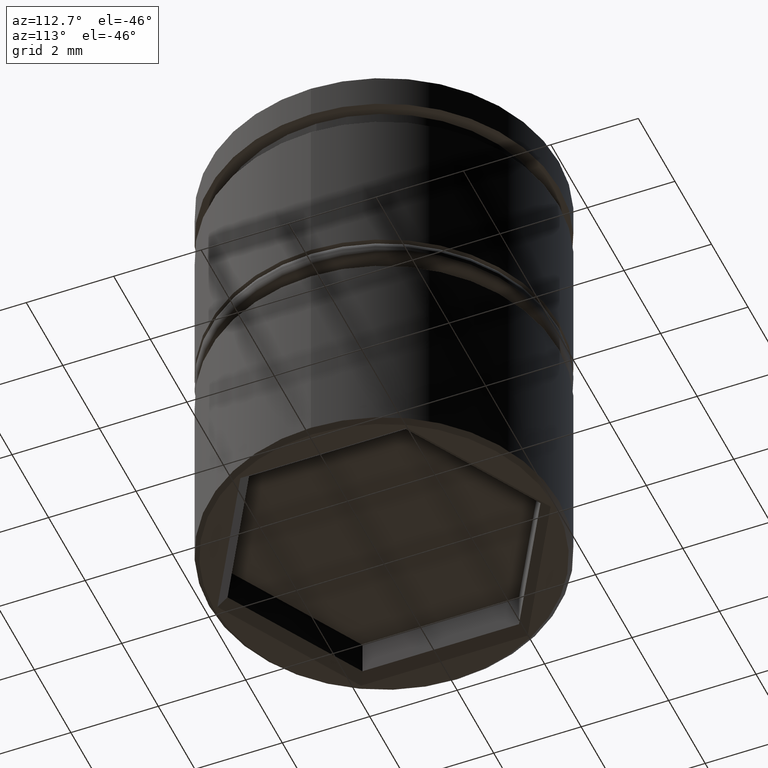
[diagram: clean part render]
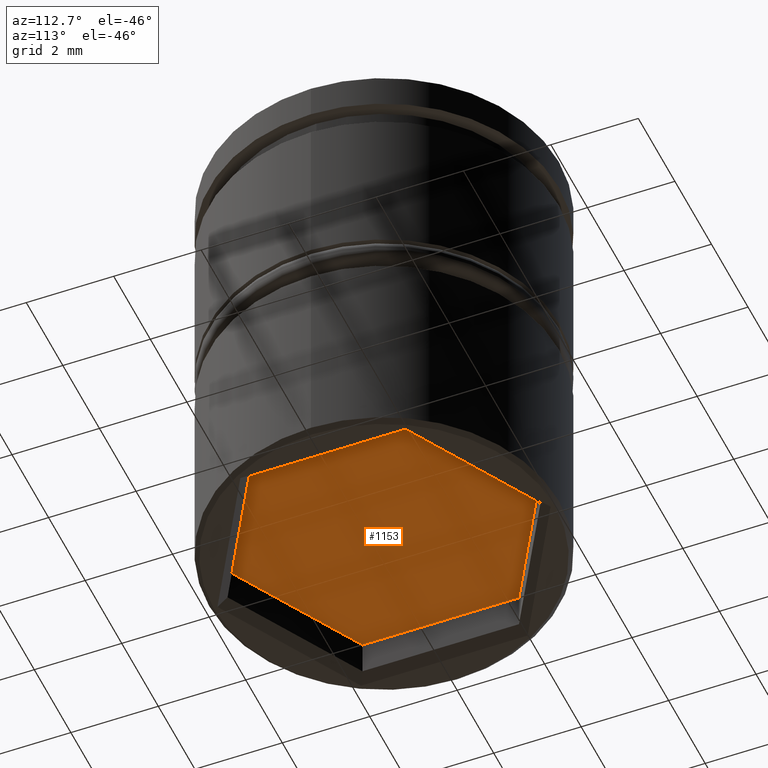
[diagram: same view with one face highlighted and labeled with its STEP entity id]
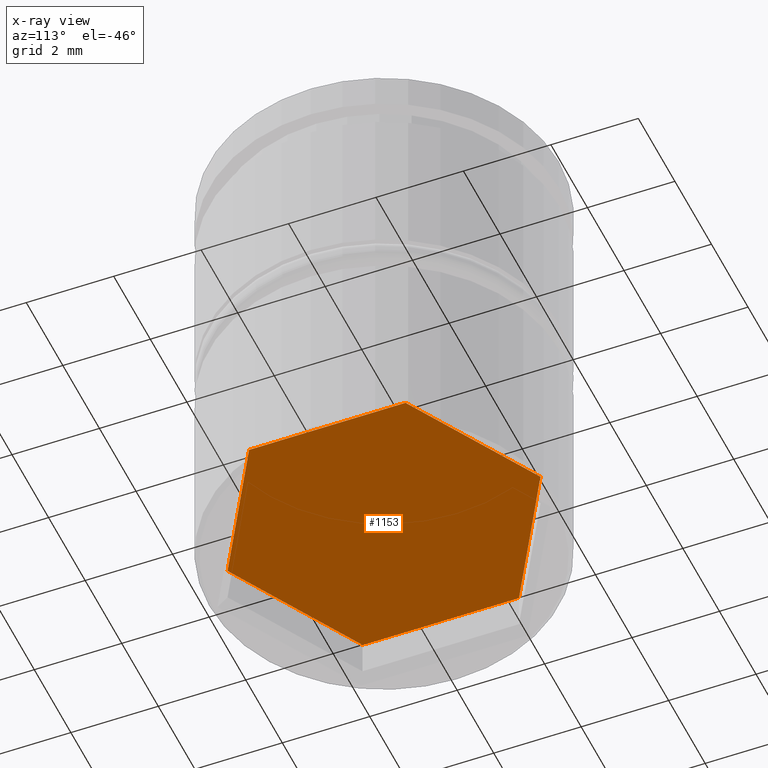
[diagram: x-ray of the same camera — body ghosted, the highlighted face saturated]
A machine part, auxiliary view. The second image highlights one B-rep face of the part: STEP entity #1153.
The next image is the same camera in x-ray: the body ghosted, the highlighted face saturated — about 0% of this face is hidden behind the body in this view.
In plain terms, the highlighted planar face has unit normal (0, 0, -1).
Its self-contained STEP definition (entity closure, byte-faithful):
#3 = DIRECTION ( 'NONE',  ( -1.211544031239644746E-16, -1.000000000000000000, 0.000000000000000000 ) ) ;
#13 = DIRECTION ( 'NONE',  ( -0.8660254037844384856, 0.5000000000000002220, 0.000000000000000000 ) ) ;
#18 = LINE ( 'NONE', #895, #443 ) ;
#46 = EDGE_CURVE ( 'NONE', #280, #302, #18, .T. ) ;
#117 = VERTEX_POINT ( 'NONE', #1010 ) ;
#118 = LINE ( 'NONE', #938, #213 ) ;
#136 = CARTESIAN_POINT ( 'NONE',  ( 3.100000000000000977, -1.789785834487840344, -9.500000000000001776 ) ) ;
#143 = EDGE_CURVE ( 'NONE', #593, #280, #995, .T. ) ;
#148 = CARTESIAN_POINT ( 'NONE',  ( -3.100000000000000533, 1.789785834487841010, -9.500000000000001776 ) ) ;
#173 = VECTOR ( 'NONE', #1041, 1000.000000000000000 ) ;
#213 = VECTOR ( 'NONE', #1036, 1000.000000000000227 ) ;
#280 = VERTEX_POINT ( 'NONE', #564 ) ;
#281 = DIRECTION ( 'NONE',  ( 0.000000000000000000, 1.000000000000000000, 0.000000000000000000 ) ) ;
#302 = VERTEX_POINT ( 'NONE', #803 ) ;
#353 = VECTOR ( 'NONE', #498, 1000.000000000000114 ) ;
#372 = VECTOR ( 'NONE', #3, 1000.000000000000000 ) ;
#377 = VERTEX_POINT ( 'NONE', #425 ) ;
#383 = CARTESIAN_POINT ( 'NONE',  ( -4.310144132208485433E-16, -3.579571668975680687, -9.500000000000001776 ) ) ;
#404 = PLANE ( 'NONE',  #1001 ) ;
#425 = CARTESIAN_POINT ( 'NONE',  ( 0.000000000000000000, 3.579571668975680243, -9.500000000000001776 ) ) ;
#443 = VECTOR ( 'NONE', #281, 1000.000000000000000 ) ;
#449 = CARTESIAN_POINT ( 'NONE',  ( -4.310144132208485433E-16, -3.579571668975680687, -9.500000000000001776 ) ) ;
#498 = DIRECTION ( 'NONE',  ( 0.8660254037844387076, 0.4999999999999998335, 0.000000000000000000 ) ) ;
#516 = VECTOR ( 'NONE', #13, 1000.000000000000227 ) ;
#524 = ORIENTED_EDGE ( 'NONE', *, *, #143, .T. ) ;
#536 = EDGE_CURVE ( 'NONE', #931, #117, #1173, .T. ) ;
#553 = ORIENTED_EDGE ( 'NONE', *, *, #46, .T. ) ;
#564 = CARTESIAN_POINT ( 'NONE',  ( -3.100000000000000533, -1.789785834487839900, -9.500000000000001776 ) ) ;
#583 = FACE_OUTER_BOUND ( 'NONE', #1029, .T. ) ;
#593 = VERTEX_POINT ( 'NONE', #383 ) ;
#710 = CARTESIAN_POINT ( 'NONE',  ( 3.100000000000000977, 1.789785834487839455, -9.500000000000001776 ) ) ;
#721 = EDGE_CURVE ( 'NONE', #377, #931, #118, .T. ) ;
#760 = EDGE_CURVE ( 'NONE', #302, #377, #1120, .T. ) ;
#791 = ORIENTED_EDGE ( 'NONE', *, *, #536, .T. ) ;
#803 = CARTESIAN_POINT ( 'NONE',  ( -3.100000000000000533, 1.789785834487841010, -9.500000000000001776 ) ) ;
#891 = EDGE_CURVE ( 'NONE', #117, #593, #940, .T. ) ;
#895 = CARTESIAN_POINT ( 'NONE',  ( -3.100000000000000533, -1.789785834487839900, -9.500000000000001776 ) ) ;
#931 = VERTEX_POINT ( 'NONE', #710 ) ;
#938 = CARTESIAN_POINT ( 'NONE',  ( 0.000000000000000000, 3.579571668975680243, -9.500000000000001776 ) ) ;
#940 = LINE ( 'NONE', #136, #173 ) ;
#943 = CARTESIAN_POINT ( 'NONE',  ( 0.000000000000000000, 0.000000000000000000, -9.500000000000001776 ) ) ;
#994 = ORIENTED_EDGE ( 'NONE', *, *, #760, .T. ) ;
#995 = LINE ( 'NONE', #449, #516 ) ;
#1001 = AXIS2_PLACEMENT_3D ( 'NONE', #943, #1045, #1134 ) ;
#1010 = CARTESIAN_POINT ( 'NONE',  ( 3.100000000000000977, -1.789785834487840344, -9.500000000000001776 ) ) ;
#1029 = EDGE_LOOP ( 'NONE', ( #994, #1137, #791, #1132, #524, #553 ) ) ;
#1036 = DIRECTION ( 'NONE',  ( 0.8660254037844385966, -0.5000000000000000000, 0.000000000000000000 ) ) ;
#1041 = DIRECTION ( 'NONE',  ( -0.8660254037844387076, -0.4999999999999999445, 0.000000000000000000 ) ) ;
#1045 = DIRECTION ( 'NONE',  ( 0.000000000000000000, 0.000000000000000000, -1.000000000000000000 ) ) ;
#1085 = CARTESIAN_POINT ( 'NONE',  ( 3.100000000000000977, 1.789785834487839455, -9.500000000000001776 ) ) ;
#1120 = LINE ( 'NONE', #148, #353 ) ;
#1132 = ORIENTED_EDGE ( 'NONE', *, *, #891, .T. ) ;
#1134 = DIRECTION ( 'NONE',  ( -1.000000000000000000, 0.000000000000000000, -0.000000000000000000 ) ) ;
#1137 = ORIENTED_EDGE ( 'NONE', *, *, #721, .T. ) ;
#1153 = ADVANCED_FACE ( 'NONE', ( #583 ), #404, .T. ) ;
#1173 = LINE ( 'NONE', #1085, #372 ) ;